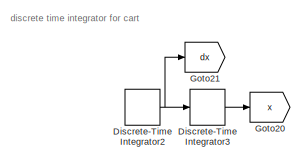
[diagram: root canvas - part 1/2, top center region]
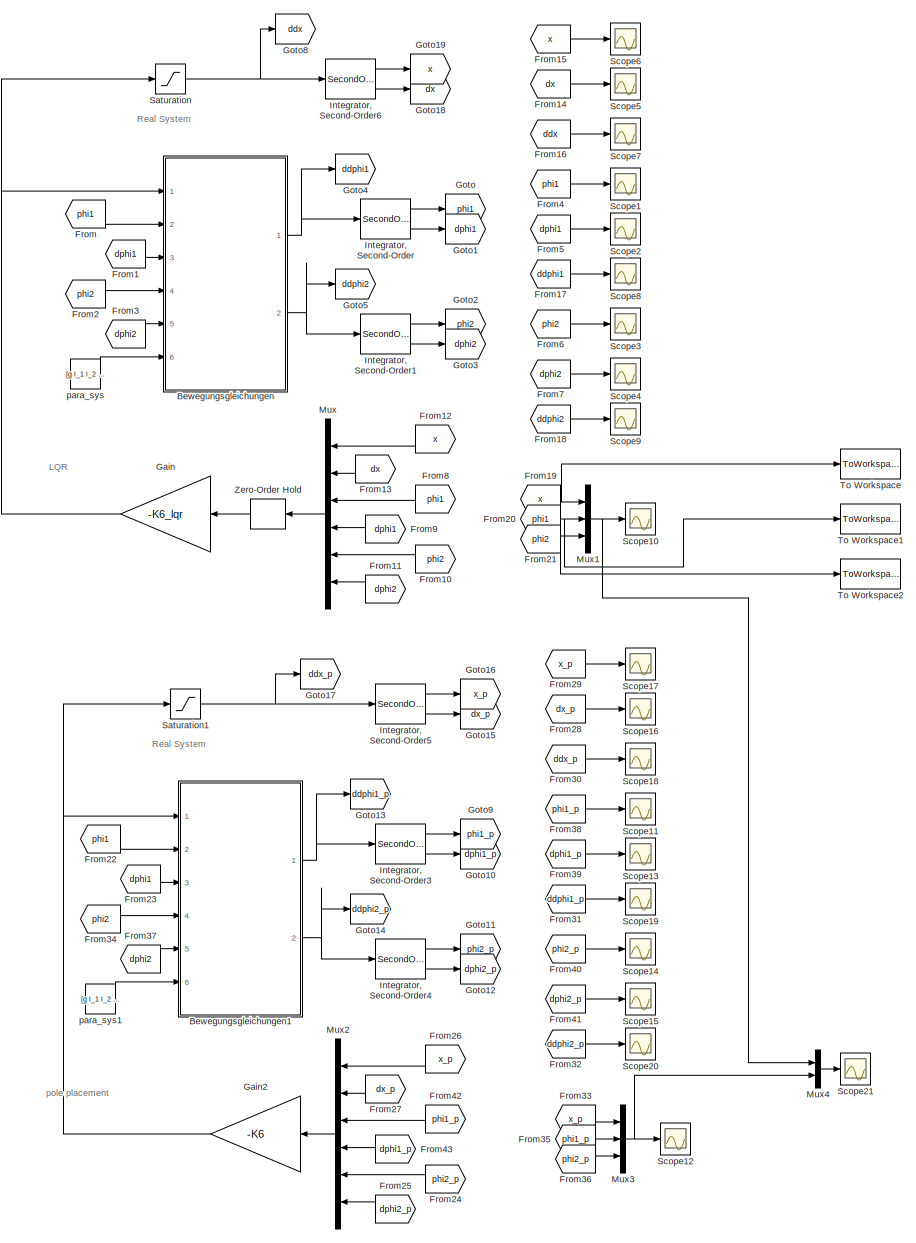
[diagram: root canvas - part 2/2, most of the canvas]
MODEL slx_98deab906022
KIND model
CONFIG AbsTol = auto
CONFIG FixedStep = T_s
CONFIG InitFcn = dp_statefeedback_script
CONFIG MaxStep = auto
CONFIG MinStep = auto
CONFIG RelTol = 1e-3
CONFIG SampleTimeConstraint = Unconstrained
CONFIG Solver = FixedStepAuto
CONFIG SolverMode = Auto
CONFIG SolverName = FixedStepAuto
CONFIG StartTime = 0.0
CONFIG StopTime = 10
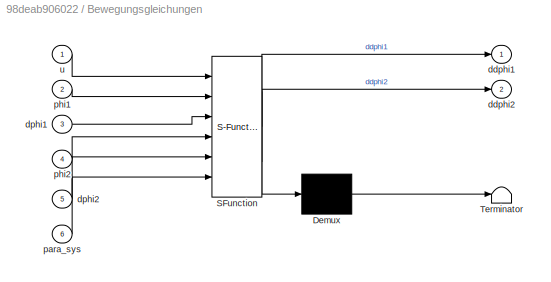
BLOCK [SubSystem] Bewegungsgleichungen
  ErrorFcn = Stateflow.Translate.translate
  PermitHierarchicalResolution = ExplicitOnly
  Ports = [6, 2]
  RequestExecContextInheritance = off
  SFBlockType = MATLAB Function
  TreatAsAtomicUnit = on
BLOCK [Demux] Bewegungsgleichungen/ Demux 
  Outputs = 1
  Ports = [1, 1]
BLOCK [S-Function] Bewegungsgleichungen/ SFunction 
  EnableBusSupport = on
  FunctionName = sf_sfun
  PortCounts = [6 3]
  Ports = [6, 3]
  Tag = Stateflow S-Function dp_statefeedback 5
BLOCK [Terminator] Bewegungsgleichungen/ Terminator 
BLOCK [Outport] Bewegungsgleichungen/ddphi1
  IconDisplay = Port number
BLOCK [Outport] Bewegungsgleichungen/ddphi2
  IconDisplay = Port number
  Port = 2
BLOCK [Inport] Bewegungsgleichungen/dphi1
  IconDisplay = Port number
  Port = 3
BLOCK [Inport] Bewegungsgleichungen/dphi2
  IconDisplay = Port number
  Port = 5
BLOCK [Inport] Bewegungsgleichungen/para_sys
  IconDisplay = Port number
  Port = 6
BLOCK [Inport] Bewegungsgleichungen/phi1
  IconDisplay = Port number
  Port = 2
BLOCK [Inport] Bewegungsgleichungen/phi2
  IconDisplay = Port number
  Port = 4
BLOCK [Inport] Bewegungsgleichungen/u
  IconDisplay = Port number
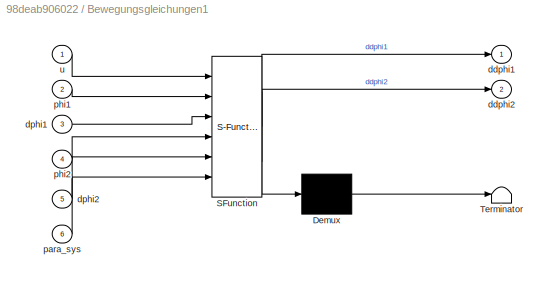
BLOCK [SubSystem] Bewegungsgleichungen1
  Commented = on
  ErrorFcn = Stateflow.Translate.translate
  PermitHierarchicalResolution = ExplicitOnly
  Ports = [6, 2]
  RequestExecContextInheritance = off
  SFBlockType = MATLAB Function
  TreatAsAtomicUnit = on
BLOCK [Demux] Bewegungsgleichungen1/ Demux 
  Outputs = 1
  Ports = [1, 1]
BLOCK [S-Function] Bewegungsgleichungen1/ SFunction 
  EnableBusSupport = on
  FunctionName = sf_sfun
  PortCounts = [6 3]
  Ports = [6, 3]
  Tag = Stateflow S-Function dp_statefeedback 1
BLOCK [Terminator] Bewegungsgleichungen1/ Terminator 
BLOCK [Outport] Bewegungsgleichungen1/ddphi1
  IconDisplay = Port number
BLOCK [Outport] Bewegungsgleichungen1/ddphi2
  IconDisplay = Port number
  Port = 2
BLOCK [Inport] Bewegungsgleichungen1/dphi1
  IconDisplay = Port number
  Port = 3
BLOCK [Inport] Bewegungsgleichungen1/dphi2
  IconDisplay = Port number
  Port = 5
BLOCK [Inport] Bewegungsgleichungen1/para_sys
  IconDisplay = Port number
  Port = 6
BLOCK [Inport] Bewegungsgleichungen1/phi1
  IconDisplay = Port number
  Port = 2
BLOCK [Inport] Bewegungsgleichungen1/phi2
  IconDisplay = Port number
  Port = 4
BLOCK [Inport] Bewegungsgleichungen1/u
  IconDisplay = Port number
BLOCK [DiscreteIntegrator] Discrete-Time Integrator2
  Commented = on
  InitialConditionSetting = State (most efficient)
  LimitOutput = on
  LowerSaturationLimit = -5
  Ports = [1, 1]
  SampleTime = T_s
  UpperSaturationLimit = 5
BLOCK [DiscreteIntegrator] Discrete-Time Integrator3
  Commented = on
  InitialConditionSetting = State (most efficient)
  LimitOutput = on
  LowerSaturationLimit = -0.2
  Ports = [1, 1]
  SampleTime = T_s
  UpperSaturationLimit = 0.2
BLOCK [From] From
  GotoTag = phi1
BLOCK [From] From1
  GotoTag = dphi1
BLOCK [From] From10
  GotoTag = phi2
BLOCK [From] From11
  GotoTag = dphi2
BLOCK [From] From12
  GotoTag = x
BLOCK [From] From13
  GotoTag = dx
BLOCK [From] From14
  GotoTag = dx
BLOCK [From] From15
  GotoTag = x
BLOCK [From] From16
  GotoTag = ddx
BLOCK [From] From17
  GotoTag = ddphi1
BLOCK [From] From18
  GotoTag = ddphi2
BLOCK [From] From19
  GotoTag = x
BLOCK [From] From2
  GotoTag = phi2
BLOCK [From] From20
  GotoTag = phi1
BLOCK [From] From21
  GotoTag = phi2
BLOCK [From] From22
  Commented = on
  GotoTag = phi1
BLOCK [From] From23
  Commented = on
  GotoTag = dphi1
BLOCK [From] From24
  Commented = on
  GotoTag = phi2_p
BLOCK [From] From25
  Commented = on
  GotoTag = dphi2_p
BLOCK [From] From26
  Commented = on
  GotoTag = x_p
BLOCK [From] From27
  Commented = on
  GotoTag = dx_p
BLOCK [From] From28
  Commented = on
  GotoTag = dx_p
BLOCK [From] From29
  Commented = on
  GotoTag = x_p
BLOCK [From] From3
  GotoTag = dphi2
BLOCK [From] From30
  Commented = on
  GotoTag = ddx_p
BLOCK [From] From31
  Commented = on
  GotoTag = ddphi1_p
BLOCK [From] From32
  Commented = on
  GotoTag = ddphi2_p
BLOCK [From] From33
  Commented = on
  GotoTag = x_p
BLOCK [From] From34
  Commented = on
  GotoTag = phi2
BLOCK [From] From35
  Commented = on
  GotoTag = phi1_p
BLOCK [From] From36
  Commented = on
  GotoTag = phi2_p
BLOCK [From] From37
  Commented = on
  GotoTag = dphi2
BLOCK [From] From38
  Commented = on
  GotoTag = phi1_p
BLOCK [From] From39
  Commented = on
  GotoTag = dphi1_p
BLOCK [From] From4
  GotoTag = phi1
BLOCK [From] From40
  Commented = on
  GotoTag = phi2_p
BLOCK [From] From41
  Commented = on
  GotoTag = dphi2_p
BLOCK [From] From42
  Commented = on
  GotoTag = phi1_p
BLOCK [From] From43
  Commented = on
  GotoTag = dphi1_p
BLOCK [From] From5
  GotoTag = dphi1
BLOCK [From] From6
  GotoTag = phi2
BLOCK [From] From7
  GotoTag = dphi2
BLOCK [From] From8
  GotoTag = phi1
BLOCK [From] From9
  GotoTag = dphi1
BLOCK [Gain] Gain
  Gain = -K6_lqr
  Multiplication = Matrix(K*u) (u vector)
  OutDataTypeStr = Inherit: Inherit via internal rule
  ParamDataTypeStr = Inherit: Inherit via internal rule
  SaturateOnIntegerOverflow = off
BLOCK [Gain] Gain2
  Commented = on
  Gain = -K6
  Multiplication = Matrix(K*u) (u vector)
  OutDataTypeStr = Inherit: Inherit via internal rule
  ParamDataTypeStr = Inherit: Inherit via internal rule
  SaturateOnIntegerOverflow = off
BLOCK [Goto] Goto
  GotoTag = phi1
BLOCK [Goto] Goto1
  GotoTag = dphi1
BLOCK [Goto] Goto10
  Commented = on
  GotoTag = dphi1_p
BLOCK [Goto] Goto11
  Commented = on
  GotoTag = phi2_p
BLOCK [Goto] Goto12
  Commented = on
  GotoTag = dphi2_p
BLOCK [Goto] Goto13
  Commented = on
  GotoTag = ddphi1_p
BLOCK [Goto] Goto14
  Commented = on
  GotoTag = ddphi2_p
BLOCK [Goto] Goto15
  Commented = on
  GotoTag = dx_p
BLOCK [Goto] Goto16
  Commented = on
  GotoTag = x_p
BLOCK [Goto] Goto17
  Commented = on
  GotoTag = ddx_p
BLOCK [Goto] Goto18
  GotoTag = dx
BLOCK [Goto] Goto19
  GotoTag = x
BLOCK [Goto] Goto2
  GotoTag = phi2
BLOCK [Goto] Goto20
  Commented = on
  GotoTag = x
BLOCK [Goto] Goto21
  Commented = on
  GotoTag = dx
BLOCK [Goto] Goto3
  GotoTag = dphi2
BLOCK [Goto] Goto4
  GotoTag = ddphi1
BLOCK [Goto] Goto5
  GotoTag = ddphi2
BLOCK [Goto] Goto8
  GotoTag = ddx
BLOCK [Goto] Goto9
  Commented = on
  GotoTag = phi1_p
BLOCK [SecondOrderIntegrator] Integrator, Second-Order
  ICDXDT = dphi1_0
  ICX = phi1_0
  Ports = [1, 2]
BLOCK [SecondOrderIntegrator] Integrator, Second-Order1
  ICDXDT = dphi2_0
  ICX = phi2_0
  Ports = [1, 2]
BLOCK [SecondOrderIntegrator] Integrator, Second-Order3
  Commented = on
  ICDXDT = dphi1_0
  ICX = phi1_0
  Ports = [1, 2]
BLOCK [SecondOrderIntegrator] Integrator, Second-Order4
  Commented = on
  ICDXDT = dphi2_0
  ICX = phi2_0
  Ports = [1, 2]
BLOCK [SecondOrderIntegrator] Integrator, Second-Order5
  Commented = on
  ICDXDT = dx_0
  ICX = x_0
  LimitDXDT = on
  LimitX = on
  LowerLimitDXDT = -5
  LowerLimitX = -0.2
  Ports = [1, 2]
  UpperLimitDXDT = 5
  UpperLimitX = 0.2
BLOCK [SecondOrderIntegrator] Integrator, Second-Order6
  ICDXDT = dx_0
  ICX = x_0
  LimitDXDT = on
  LimitX = on
  LowerLimitDXDT = -5
  LowerLimitX = -0.2
  Ports = [1, 2]
  UpperLimitDXDT = 5
  UpperLimitX = 0.2
BLOCK [Mux] Mux
  DisplayOption = bar
  Inputs = 6
  Ports = [6, 1]
BLOCK [Mux] Mux1
  DisplayOption = bar
  Inputs = 3
  Ports = [3, 1]
BLOCK [Mux] Mux2
  Commented = on
  DisplayOption = bar
  Inputs = 6
  Ports = [6, 1]
BLOCK [Mux] Mux3
  Commented = on
  DisplayOption = bar
  Inputs = 3
  Ports = [3, 1]
BLOCK [Mux] Mux4
  Commented = on
  DisplayOption = bar
  Inputs = 2
  Ports = [2, 1]
BLOCK [Saturate] Saturation
  InputPortMap = u0
  LowerLimit = -20
  Ports = [1, 1]
  UpperLimit = 20
BLOCK [Saturate] Saturation1
  Commented = on
  InputPortMap = u0
  LowerLimit = -20
  Ports = [1, 1]
  UpperLimit = 20
BLOCK [Scope] Scope1
  DataFormat = StructureWithTime
  Floating = off
  LimitDataPoints = off
  NumInputPorts = 1
  Ports = [1]
  SaveName = ScopeData1
  ShowLegends = on
  YMax = 0.07045
  YMin = -0.10904
BLOCK [Scope] Scope10
  DataFormat = StructureWithTime
  Floating = off
  LimitDataPoints = off
  NumInputPorts = 1
  Ports = [1]
  SaveName = ScopeData9
  ShowLegends = on
  YMax = 0.07045
  YMin = -0.10904
BLOCK [Scope] Scope11
  Commented = on
  DataFormat = StructureWithTime
  Floating = off
  LimitDataPoints = off
  NumInputPorts = 1
  Ports = [1]
  SaveName = ScopeData10
  ShowLegends = on
  YMax = 0.13702
  YMin = -0.15987
BLOCK [Scope] Scope12
  Commented = on
  DataFormat = StructureWithTime
  Floating = off
  LimitDataPoints = off
  NumInputPorts = 1
  Ports = [1]
  SaveName = ScopeData11
  ShowLegends = on
  YMax = 0.31496
  YMin = -0.1295
BLOCK [Scope] Scope13
  Commented = on
  DataFormat = StructureWithTime
  Floating = off
  LimitDataPoints = off
  NumInputPorts = 1
  Ports = [1]
  SaveName = ScopeData12
  ShowLegends = on
  YMax = 0.00876
  YMin = -0.01681
BLOCK [Scope] Scope14
  Commented = on
  DataFormat = StructureWithTime
  Floating = off
  LimitDataPoints = off
  NumInputPorts = 1
  Ports = [1]
  SaveName = ScopeData13
  ShowLegends = on
  YMax = 0.2781
  YMin = -0.07847
BLOCK [Scope] Scope15
  Commented = on
  DataFormat = StructureWithTime
  Floating = off
  LimitDataPoints = off
  NumInputPorts = 1
  Ports = [1]
  SaveName = ScopeData14
  ShowLegends = on
  YMax = 10
  YMin = -10
BLOCK [Scope] Scope16
  Commented = on
  DataFormat = StructureWithTime
  Floating = off
  LimitDataPoints = off
  NumInputPorts = 1
  Ports = [1]
  SaveName = ScopeData15
  ShowLegends = on
  YMax = 0.30906
  YMin = -0.36523
BLOCK [Scope] Scope17
  Commented = on
  DataFormat = StructureWithTime
  Floating = off
  LimitDataPoints = off
  NumInputPorts = 1
  Ports = [1]
  SaveName = ScopeData16
  ShowLegends = on
  YMax = 0.09061
  YMin = -0.04011
BLOCK [Scope] Scope18
  Commented = on
  DataFormat = StructureWithTime
  Floating = off
  LimitDataPoints = off
  NumInputPorts = 1
  Ports = [1]
  SaveName = ScopeData17
  ShowLegends = on
  YMax = 6.38033
  YMin = -5.88121
BLOCK [Scope] Scope19
  Commented = on
  DataFormat = StructureWithTime
  Floating = off
  LimitDataPoints = off
  NumInputPorts = 1
  Ports = [1]
  SaveName = ScopeData18
  ShowLegends = on
  YMax = 0.46672
  YMin = -1.30011
BLOCK [Scope] Scope2
  DataFormat = StructureWithTime
  Floating = off
  LimitDataPoints = off
  NumInputPorts = 1
  Ports = [1]
  ShowLegends = on
  YMax = 0.99469
  YMin = -2.1222
BLOCK [Scope] Scope20
  Commented = on
  DataFormat = StructureWithTime
  Floating = off
  LimitDataPoints = off
  NumInputPorts = 1
  Ports = [1]
  SaveName = ScopeData19
  ShowLegends = on
  YMax = 11.91798
  YMin = -11.53518
BLOCK [Scope] Scope21
  Commented = on
  DataFormat = StructureWithTime
  Floating = off
  LimitDataPoints = off
  NumInputPorts = 1
  Ports = [1]
  SaveName = ScopeData20
  ShowLegends = on
  YMax = 0.07051
  YMin = -0.10959
BLOCK [Scope] Scope3
  DataFormat = StructureWithTime
  Floating = off
  LimitDataPoints = off
  NumInputPorts = 1
  Ports = [1]
  SaveName = ScopeData2
  ShowLegends = on
  YMax = 0.03097
  YMin = -0.05156
BLOCK [Scope] Scope4
  DataFormat = StructureWithTime
  Floating = off
  LimitDataPoints = off
  NumInputPorts = 1
  Ports = [1]
  SaveName = ScopeData3
  ShowLegends = on
  YMax = 10
  YMin = -10
BLOCK [Scope] Scope5
  DataFormat = StructureWithTime
  Floating = off
  LimitDataPoints = off
  NumInputPorts = 1
  Ports = [1]
  SaveName = ScopeData4
  ShowLegends = on
  YMax = 0.30635
  YMin = -0.42798
BLOCK [Scope] Scope6
  DataFormat = StructureWithTime
  Floating = off
  LimitDataPoints = off
  NumInputPorts = 1
  Ports = [1]
  SaveName = ScopeData5
  ShowLegends = on
  YMax = 0.0508
  YMin = -0.03717
BLOCK [Scope] Scope7
  DataFormat = StructureWithTime
  Floating = off
  LimitDataPoints = off
  NumInputPorts = 1
  Ports = [1]
  SaveName = ScopeData6
  ShowLegends = on
  YMax = 8.27081
  YMin = -22.71278
BLOCK [Scope] Scope8
  DataFormat = StructureWithTime
  Floating = off
  LimitDataPoints = off
  NumInputPorts = 1
  Ports = [1]
  SaveName = ScopeData7
  ShowLegends = on
  YMax = 0.46672
  YMin = -1.30011
BLOCK [Scope] Scope9
  DataFormat = StructureWithTime
  Floating = off
  LimitDataPoints = off
  NumInputPorts = 1
  Ports = [1]
  SaveName = ScopeData8
  ShowLegends = on
  YMax = 11.93287
  YMin = -11.66916
BLOCK [ToWorkspace] To Workspace
  FixptAsFi = on
  MaxDataPoints = inf
  Ports = [1]
  SampleTime = T_s
  Save2DSignal = 3-D array (concatenate along third dimension)
  SaveFormat = Timeseries
  VariableName = x
BLOCK [ToWorkspace] To Workspace1
  FixptAsFi = on
  MaxDataPoints = inf
  Ports = [1]
  SampleTime = T_s
  Save2DSignal = 3-D array (concatenate along third dimension)
  SaveFormat = Timeseries
  VariableName = phi1
BLOCK [ToWorkspace] To Workspace2
  FixptAsFi = on
  MaxDataPoints = inf
  Ports = [1]
  SampleTime = T_s
  Save2DSignal = 3-D array (concatenate along third dimension)
  SaveFormat = Timeseries
  VariableName = phi2
BLOCK [ZeroOrderHold] Zero-Order Hold
  SampleTime = T_s
BLOCK [Constant] para_sys
  Value = [g l_1 l_2 m_1 m_2 m_3 d_p1 d_p2]
BLOCK [Constant] para_sys1
  Commented = on
  Value = [g l_1 l_2 m_1 m_2 m_3 d_p1 d_p2]
ANNOTATION (root): LQR
ANNOTATION (root): Real System
ANNOTATION (root): pole placement
ANNOTATION (root): discrete time integrator for cart
NET Bewegungsgleichungen1:1 -> Goto13:1, Integrator, Second-Order3:1
NET Bewegungsgleichungen1:2 -> Goto14:1, Integrator, Second-Order4:1
NET Bewegungsgleichungen:1 -> Goto4:1, Integrator, Second-Order:1
NET Bewegungsgleichungen:2 -> Goto5:1, Integrator, Second-Order1:1
NET Discrete-Time Integrator2:1 -> Discrete-Time Integrator3:1, Goto21:1
LINE Discrete-Time Integrator3:1 -> Goto20:1
LINE From10:1 -> Mux:5
LINE From11:1 -> Mux:6
LINE From12:1 -> Mux:1
LINE From13:1 -> Mux:2
LINE From14:1 -> Scope5:1
LINE From15:1 -> Scope6:1
LINE From16:1 -> Scope7:1
LINE From17:1 -> Scope8:1
LINE From18:1 -> Scope9:1
NET From19:1 -> Mux1:1, To Workspace:1
LINE From1:1 -> Bewegungsgleichungen:3
NET From20:1 -> Mux1:2, To Workspace1:1
NET From21:1 -> Mux1:3, To Workspace2:1
LINE From22:1 -> Bewegungsgleichungen1:2
LINE From23:1 -> Bewegungsgleichungen1:3
LINE From24:1 -> Mux2:5
LINE From25:1 -> Mux2:6
LINE From26:1 -> Mux2:1
LINE From27:1 -> Mux2:2
LINE From28:1 -> Scope16:1
LINE From29:1 -> Scope17:1
LINE From2:1 -> Bewegungsgleichungen:4
LINE From30:1 -> Scope18:1
LINE From31:1 -> Scope19:1
LINE From32:1 -> Scope20:1
LINE From33:1 -> Mux3:1
LINE From34:1 -> Bewegungsgleichungen1:4
LINE From35:1 -> Mux3:2
LINE From36:1 -> Mux3:3
LINE From37:1 -> Bewegungsgleichungen1:5
LINE From38:1 -> Scope11:1
LINE From39:1 -> Scope13:1
LINE From3:1 -> Bewegungsgleichungen:5
LINE From40:1 -> Scope14:1
LINE From41:1 -> Scope15:1
LINE From42:1 -> Mux2:3
LINE From43:1 -> Mux2:4
LINE From4:1 -> Scope1:1
LINE From5:1 -> Scope2:1
LINE From6:1 -> Scope3:1
LINE From7:1 -> Scope4:1
LINE From8:1 -> Mux:3
LINE From9:1 -> Mux:4
LINE From:1 -> Bewegungsgleichungen:2
NET Gain2:1 -> Bewegungsgleichungen1:1, Saturation1:1
NET Gain:1 -> Bewegungsgleichungen:1, Saturation:1
LINE Integrator, Second-Order1:1 -> Goto2:1
LINE Integrator, Second-Order1:2 -> Goto3:1
LINE Integrator, Second-Order3:1 -> Goto9:1
LINE Integrator, Second-Order3:2 -> Goto10:1
LINE Integrator, Second-Order4:1 -> Goto11:1
LINE Integrator, Second-Order4:2 -> Goto12:1
LINE Integrator, Second-Order5:1 -> Goto16:1
LINE Integrator, Second-Order5:2 -> Goto15:1
LINE Integrator, Second-Order6:1 -> Goto19:1
LINE Integrator, Second-Order6:2 -> Goto18:1
LINE Integrator, Second-Order:1 -> Goto:1
LINE Integrator, Second-Order:2 -> Goto1:1
NET Mux1:1 -> Mux4:1, Scope10:1
LINE Mux2:1 -> Gain2:1
NET Mux3:1 -> Mux4:2, Scope12:1
LINE Mux4:1 -> Scope21:1
LINE Mux:1 -> Zero-Order Hold:1
NET Saturation1:1 -> Goto17:1, Integrator, Second-Order5:1
NET Saturation:1 -> Goto8:1, Integrator, Second-Order6:1
LINE Zero-Order Hold:1 -> Gain:1
LINE para_sys1:1 -> Bewegungsgleichungen1:6
LINE para_sys:1 -> Bewegungsgleichungen:6
note: NET lines group one-source signal fan-out (src -> all destinations, sorted); 1:1 wires keep LINE
CHART Bewegungsgleichungen1 states=1 transitions=1
  STATE_LABEL 'eML_blk_kernel()'
  STATE_LABEL 'SCRIPT:\nfunction [ddphi1, ddphi2] = pendel_1_2(u, phi1, dphi1, phi2, dphi2, para_sys)\n%#codegen\n\ng = para_sys(1);\nl_1 = para_sys(2);\nl_2 = para_sys(3);\nm_1 = para_sys(4);\nm_2 = para_sys(5);\nm_3 = para_sys(6);\nd_p1 = para_sys(7);\nd_p2 = para_sys(8);\n\nddphi1 = 1/(l_1^2*(9*cos(phi1-phi2)^2*m_2-4*m_1-12*m_2-12*m_3)*l_2)*(9*dphi1^2*cos(phi1-phi2)*sin(phi1-phi2)*l_1^2*l_2*m_2+6*m_2*l_1*l_2^2*sin(phi1-ph...<+1339ch>'
CHART Bewegungsgleichungen states=1 transitions=1
  STATE_LABEL 'eML_blk_kernel()'
  STATE_LABEL 'SCRIPT:\nfunction [ddphi1, ddphi2] = pendel_1_2(u, phi1, dphi1, phi2, dphi2, para_sys)\n%#codegen\n\ng = para_sys(1);\nl_1 = para_sys(2);\nl_2 = para_sys(3);\nm_1 = para_sys(4);\nm_2 = para_sys(5);\nm_3 = para_sys(6);\nd_p1 = para_sys(7);\nd_p2 = para_sys(8);\n\nddphi1 = 1/(l_1^2*(9*cos(phi1-phi2)^2*m_2-4*m_1-12*m_2-12*m_3)*l_2)*(9*dphi1^2*cos(phi1-phi2)*sin(phi1-phi2)*l_1^2*l_2*m_2+6*m_2*l_1*l_2^2*sin(phi1-ph...<+1339ch>'
